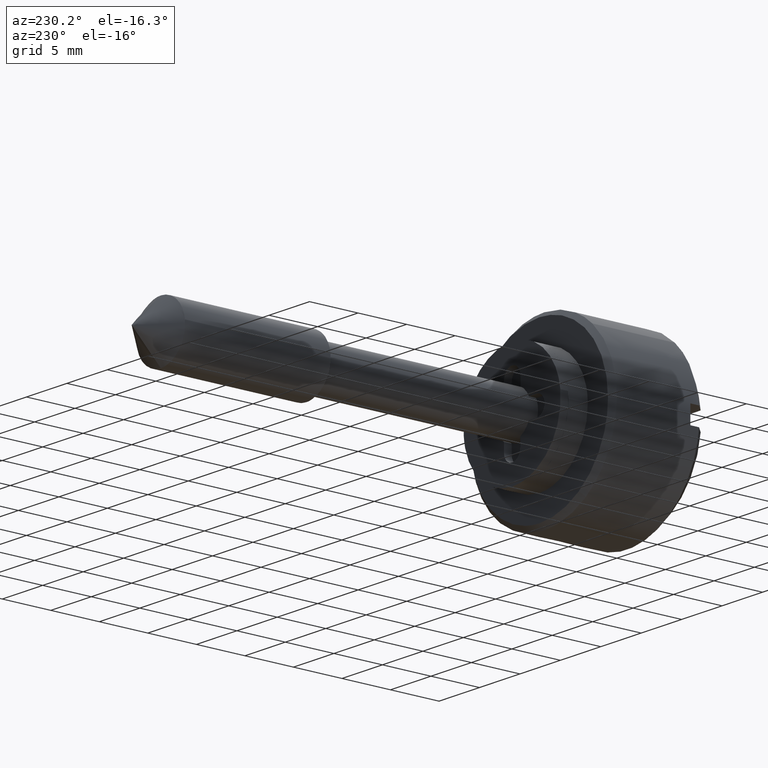
[diagram: clean part render]
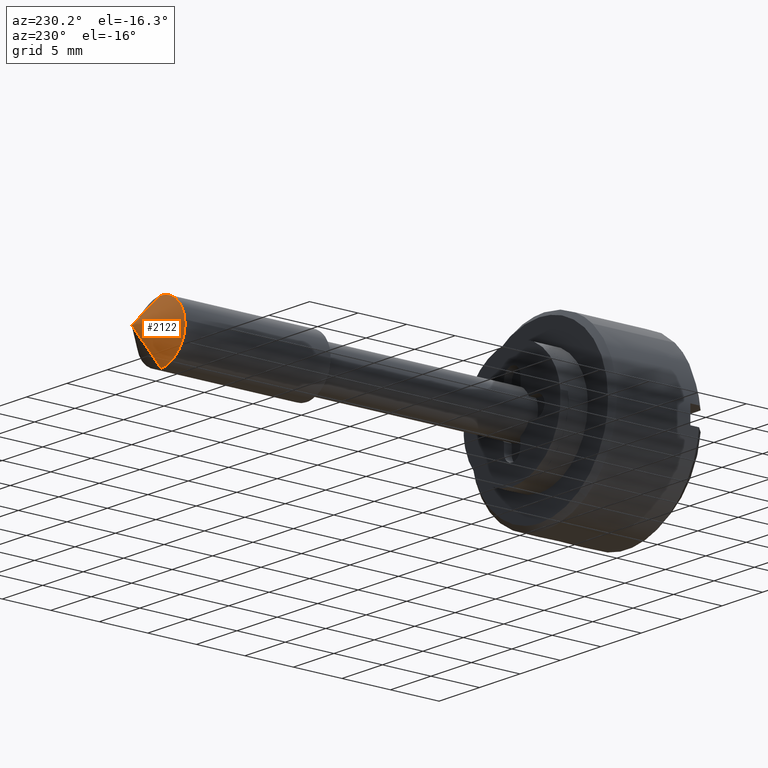
[diagram: same view with one face highlighted and labeled with its STEP entity id]
A machine part, auxiliary view. The second image highlights one B-rep face of the part: STEP entity #2122.
In plain terms, the highlighted face is a freeform B-spline surface patch.
Its self-contained STEP definition (entity closure, byte-faithful):
#1037=CARTESIAN_POINT('',(36.999999999999993,2.979028857936594,0.354100358056030));
#1038=VERTEX_POINT('',#1037);
#1039=CARTESIAN_POINT('',(37.000000000000043,0.0,-3.000000000000032));
#1040=VERTEX_POINT('',#1039);
#1041=CARTESIAN_POINT('',(36.999999999999986,2.979028857936594,0.354100358056030));
#1042=CARTESIAN_POINT('',(37.000000000000007,3.000000000000001,0.177671173598393));
#1043=CARTESIAN_POINT('',(37.0,3.0,0.0));
#1044=CARTESIAN_POINT('',(37.0,3.0,-3.0));
#1045=CARTESIAN_POINT('',(37.0,0.0,-3.0));
#1053=(BOUNDED_CURVE()B_SPLINE_CURVE(2,(#1041,#1042,#1043,#1044,#1045),.UNSPECIFIED.,.F.,.U.)B_SPLINE_CURVE_WITH_KNOTS((3,2,3),(0.459125213203390,0.500000000000000,1.0),.UNSPECIFIED.)CURVE()GEOMETRIC_REPRESENTATION_ITEM()RATIONAL_B_SPLINE_CURVE((0.956027015042158,0.976056104253655,1.0,0.707106781186548,1.0))REPRESENTATION_ITEM(''));
#1054=EDGE_CURVE('',#1038,#1040,#1053,.T.);
#1136=CARTESIAN_POINT('',(37.000000000000043,0.0,3.000000000000032));
#1137=VERTEX_POINT('',#1136);
#1138=CARTESIAN_POINT('',(37.0,0.0,3.0));
#1139=CARTESIAN_POINT('',(37.000000000000007,2.664525690874682,2.999999999999999));
#1140=CARTESIAN_POINT('',(36.999999999999986,2.979028857936594,0.354100358056030));
#1148=(BOUNDED_CURVE()B_SPLINE_CURVE(2,(#1138,#1139,#1140),.UNSPECIFIED.,.F.,.U.)B_SPLINE_CURVE_WITH_KNOTS((3,3),(0.0,0.459125213203390),.UNSPECIFIED.)CURVE()GEOMETRIC_REPRESENTATION_ITEM()RATIONAL_B_SPLINE_CURVE((1.0,0.731050676932893,0.956027015042158))REPRESENTATION_ITEM(''));
#1149=EDGE_CURVE('',#1137,#1038,#1148,.T.);
#1993=CARTESIAN_POINT('',(40.0,0.0,0.0));
#1994=VERTEX_POINT('',#1993);
#1995=CARTESIAN_POINT('',(40.0,0.0,0.0));
#1996=CARTESIAN_POINT('',(37.000000000000043,0.0,3.000000000000032));
#1997=QUASI_UNIFORM_CURVE('',1,(#1995,#1996),.UNSPECIFIED.,.F.,.U.);
#1998=EDGE_CURVE('',#1994,#1137,#1997,.T.);
#2002=CARTESIAN_POINT('',(40.0,0.0,0.0));
#2003=CARTESIAN_POINT('',(37.000000000000043,0.0,-3.000000000000032));
#2004=QUASI_UNIFORM_CURVE('',1,(#2002,#2003),.UNSPECIFIED.,.F.,.U.);
#2005=EDGE_CURVE('',#1994,#1040,#2004,.T.);
#2098=CARTESIAN_POINT('',(40.0,0.0,0.0));
#2099=CARTESIAN_POINT('',(36.923124999999992,-0.080543197824797,-3.075820631784373));
#2100=CARTESIAN_POINT('',(40.0,0.0,0.0));
#2101=CARTESIAN_POINT('',(36.923124999999999,3.160695452878708,-3.160695452878717));
#2102=CARTESIAN_POINT('',(40.0,0.0,0.0));
#2103=CARTESIAN_POINT('',(36.923124999999992,3.075820631784374,0.080543197824788));
#2104=CARTESIAN_POINT('',(40.0,0.0,0.0));
#2105=CARTESIAN_POINT('',(36.923124999999999,2.990945810690039,3.321781848528294));
#2106=CARTESIAN_POINT('',(40.0,0.0,0.0));
#2107=CARTESIAN_POINT('',(36.923124999999992,-0.241408830167624,3.067390021230324));
#2115=(BOUNDED_SURFACE()B_SPLINE_SURFACE(1,2,((#2098,#2100,#2102,#2104,#2106),(#2099,#2101,#2103,#2105,#2107)),.UNSPECIFIED.,.F.,.F.,.U.)B_SPLINE_SURFACE_WITH_KNOTS((2,2),(3,2,3),(0.0,1.0),(0.0,1.0,2.0),.UNSPECIFIED.)GEOMETRIC_REPRESENTATION_ITEM()RATIONAL_B_SPLINE_SURFACE(((1.0,0.688354575693754,1.0,0.688354575693754,1.0),(1.0,0.688354575693754,1.0,0.688354575693754,1.0)))REPRESENTATION_ITEM('')SURFACE());
#2116=ORIENTED_EDGE('',*,*,#2005,.T.);
#2117=ORIENTED_EDGE('',*,*,#1054,.F.);
#2118=ORIENTED_EDGE('',*,*,#1149,.F.);
#2119=ORIENTED_EDGE('',*,*,#1998,.F.);
#2120=EDGE_LOOP('',(#2116,#2117,#2118,#2119));
#2121=FACE_OUTER_BOUND('',#2120,.T.);
#2122=ADVANCED_FACE('',(#2121),#2115,.T.);